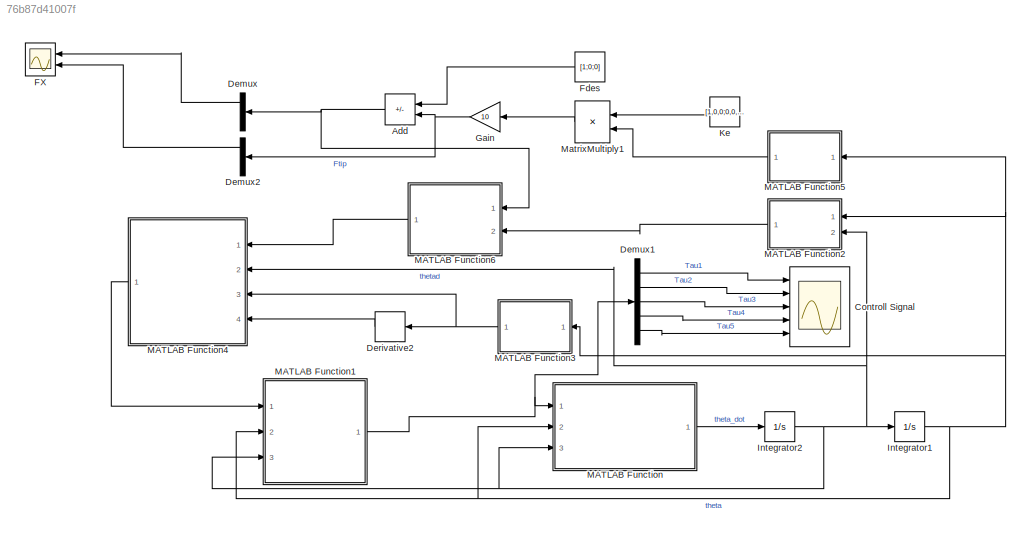
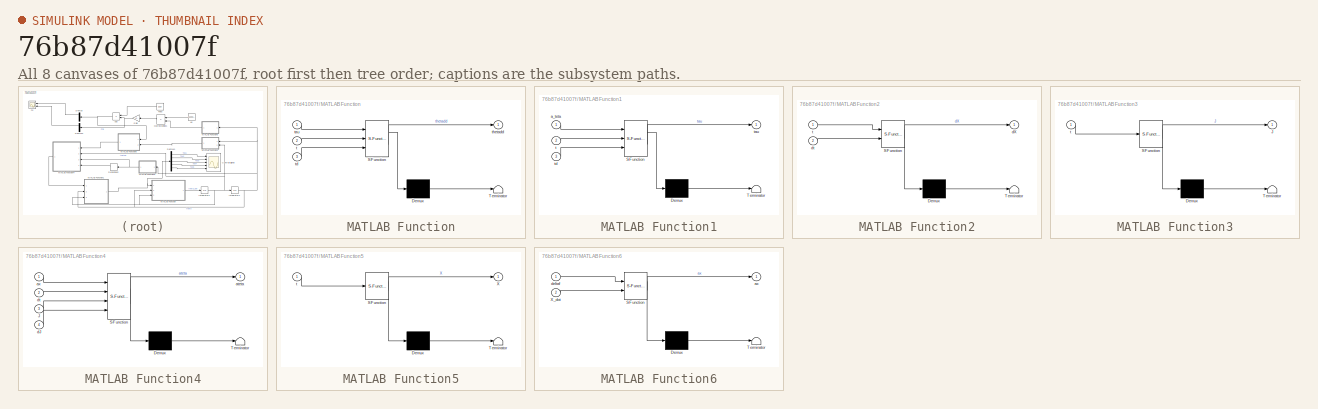
[diagram: thumbnail index - all 8 canvases of the model, root first then tree order]
MODEL slx_76b87d41007f
KIND model
CONFIG AbsTol = auto
CONFIG EnableMultiTasking = off
CONFIG FixedStep = 0.048
CONFIG MaxStep = 0.048
CONFIG MinStep = auto
CONFIG RelTol = 1e-5
CONFIG SampleTimeConstraint = Unconstrained
CONFIG SolverName = VariableStepAuto
CONFIG StartTime = 0.0
CONFIG StopTime = 5
BLOCK [Scope]  FX
  Floating = off
  NameLocation = top
  NumInputPorts = 2
  Ports = [2]
  ScopeSpecificationString = Simulink.scopes.TimeScopeBlockCfg('CurrentConfiguration', extmgr.ConfigurationSet(extmgr.Configuration('Core','General UI',true,'FigureColor',[0.501960784313725 0.501960784313725 0.501960784313725]),extmgr.Configuration('Core','Source UI',true),extmgr.Configuration('Sources','WiredSimulink',true,'DataLoggingVariableName','ScopeData1'),extmgr.Configuration('Visuals','Time Domain',true,'SerializedDi...<+2315ch>
BLOCK [Sum] Add
  IconShape = rectangular
  Inputs = +-
  NameLocation = top
  Ports = [2, 1]
BLOCK [Scope] Controll Signal
  Floating = off
  NumInputPorts = 5
  Ports = [5]
  ScopeSpecificationString = Simulink.scopes.TimeScopeBlockCfg('CurrentConfiguration', extmgr.ConfigurationSet(extmgr.Configuration('Core','General UI',true,'FigureColor',[0.501960784313725 0.501960784313725 0.501960784313725]),extmgr.Configuration('Core','Source UI',true),extmgr.Configuration('Sources','WiredSimulink',true,'DataLoggingVariableName','ScopeData1'),extmgr.Configuration('Visuals','Time Domain',true,'SerializedDi...<+8053ch>
BLOCK [Demux] Demux
  NameLocation = top
  Outputs = 3
  Ports = [1, 3]
BLOCK [Demux] Demux1
  Outputs = 5
  Ports = [1, 5]
BLOCK [Demux] Demux2
  NameLocation = top
  Outputs = 3
  Ports = [1, 3]
BLOCK [Derivative] Derivative2
  NameLocation = top
BLOCK [Constant] Fdes
  NameLocation = top
  Value = [1;0;0]
BLOCK [Gain] Gain
  Gain = 10
  NameLocation = top
BLOCK [Integrator] Integrator1
  InitialCondition = [0;0;0;0;0]
  Ports = [1, 1]
BLOCK [Integrator] Integrator2
  InitialCondition = [0;0;0;0;0]
  Ports = [1, 1]
BLOCK [Constant] Ke
  NameLocation = top
  Value = [1,0,0;0,0,0;0,0,0]
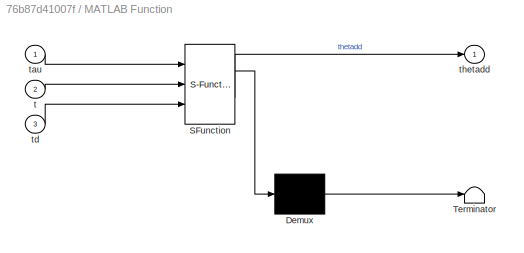
BLOCK [SubSystem] MATLAB Function
  ErrorFcn = Stateflow.Translate.translate
  PermitHierarchicalResolution = ExplicitOnly
  Ports = [3, 1]
  SFBlockType = MATLAB Function
  TreatAsAtomicUnit = on
BLOCK [Demux] MATLAB Function/ Demux 
  Outputs = 1
  Ports = [1, 1]
BLOCK [S-Function] MATLAB Function/ SFunction 
  EnableBusSupport = off
  FunctionName = sf_sfun
  PortCounts = [3 2]
  Ports = [3, 2]
  SFcnIsStateOwnerBlock = off
  SFunctionDeploymentMode = off
  Tag = Stateflow S-Function 3
BLOCK [Terminator] MATLAB Function/ Terminator 
BLOCK [Inport] MATLAB Function/t
  Port = 2
BLOCK [Inport] MATLAB Function/tau
BLOCK [Inport] MATLAB Function/td
  Port = 3
BLOCK [Outport] MATLAB Function/thetadd
BLOCK [SubSystem] MATLAB Function1
  ErrorFcn = Stateflow.Translate.translate
  PermitHierarchicalResolution = ExplicitOnly
  Ports = [3, 1]
  SFBlockType = MATLAB Function
  TreatAsAtomicUnit = on
BLOCK [Demux] MATLAB Function1/ Demux 
  Outputs = 1
  Ports = [1, 1]
BLOCK [S-Function] MATLAB Function1/ SFunction 
  EnableBusSupport = off
  FunctionName = sf_sfun
  PortCounts = [3 2]
  Ports = [3, 2]
  SFcnIsStateOwnerBlock = off
  SFunctionDeploymentMode = off
  Tag = Stateflow S-Function 2
BLOCK [Terminator] MATLAB Function1/ Terminator 
BLOCK [Inport] MATLAB Function1/a_teta
BLOCK [Inport] MATLAB Function1/t
  Port = 2
BLOCK [Outport] MATLAB Function1/tau
BLOCK [Inport] MATLAB Function1/td
  Port = 3
BLOCK [SubSystem] MATLAB Function2
  ErrorFcn = Stateflow.Translate.translate
  NameLocation = top
  PermitHierarchicalResolution = ExplicitOnly
  Ports = [2, 1]
  SFBlockType = MATLAB Function
  TreatAsAtomicUnit = on
BLOCK [Demux] MATLAB Function2/ Demux 
  Outputs = 1
  Ports = [1, 1]
BLOCK [S-Function] MATLAB Function2/ SFunction 
  EnableBusSupport = off
  FunctionName = sf_sfun
  PortCounts = [2 2]
  Ports = [2, 2]
  SFcnIsStateOwnerBlock = off
  SFunctionDeploymentMode = off
  Tag = Stateflow S-Function 1
BLOCK [Terminator] MATLAB Function2/ Terminator 
BLOCK [Outport] MATLAB Function2/dX
BLOCK [Inport] MATLAB Function2/dt
  Port = 2
BLOCK [Inport] MATLAB Function2/t
BLOCK [SubSystem] MATLAB Function3
  ErrorFcn = Stateflow.Translate.translate
  NameLocation = top
  PermitHierarchicalResolution = ExplicitOnly
  Ports = [1, 1]
  SFBlockType = MATLAB Function
  TreatAsAtomicUnit = on
BLOCK [Demux] MATLAB Function3/ Demux 
  Outputs = 1
  Ports = [1, 1]
BLOCK [S-Function] MATLAB Function3/ SFunction 
  EnableBusSupport = off
  FunctionName = sf_sfun
  PortCounts = [1 2]
  Ports = [1, 2]
  SFcnIsStateOwnerBlock = off
  SFunctionDeploymentMode = off
  Tag = Stateflow S-Function 4
BLOCK [Terminator] MATLAB Function3/ Terminator 
BLOCK [Outport] MATLAB Function3/J
BLOCK [Inport] MATLAB Function3/t
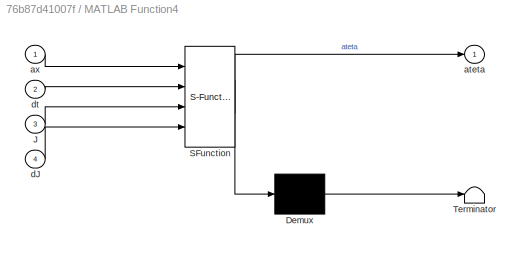
BLOCK [SubSystem] MATLAB Function4
  ErrorFcn = Stateflow.Translate.translate
  NameLocation = top
  PermitHierarchicalResolution = ExplicitOnly
  Ports = [4, 1]
  SFBlockType = MATLAB Function
  TreatAsAtomicUnit = on
BLOCK [Demux] MATLAB Function4/ Demux 
  Outputs = 1
  Ports = [1, 1]
BLOCK [S-Function] MATLAB Function4/ SFunction 
  EnableBusSupport = off
  FunctionName = sf_sfun
  PortCounts = [4 2]
  Ports = [4, 2]
  SFcnIsStateOwnerBlock = off
  SFunctionDeploymentMode = off
  Tag = Stateflow S-Function 5
BLOCK [Terminator] MATLAB Function4/ Terminator 
BLOCK [Inport] MATLAB Function4/J
  Port = 3
BLOCK [Outport] MATLAB Function4/ateta
BLOCK [Inport] MATLAB Function4/ax
BLOCK [Inport] MATLAB Function4/dJ
  Port = 4
BLOCK [Inport] MATLAB Function4/dt
  Port = 2
BLOCK [SubSystem] MATLAB Function5
  ErrorFcn = Stateflow.Translate.translate
  NameLocation = top
  PermitHierarchicalResolution = ExplicitOnly
  Ports = [1, 1]
  SFBlockType = MATLAB Function
  TreatAsAtomicUnit = on
BLOCK [Demux] MATLAB Function5/ Demux 
  Outputs = 1
  Ports = [1, 1]
BLOCK [S-Function] MATLAB Function5/ SFunction 
  EnableBusSupport = off
  FunctionName = sf_sfun
  PortCounts = [1 2]
  Ports = [1, 2]
  SFcnIsStateOwnerBlock = off
  SFunctionDeploymentMode = off
  Tag = Stateflow S-Function 6
BLOCK [Terminator] MATLAB Function5/ Terminator 
BLOCK [Outport] MATLAB Function5/X
BLOCK [Inport] MATLAB Function5/t
BLOCK [SubSystem] MATLAB Function6
  ErrorFcn = Stateflow.Translate.translate
  NameLocation = top
  PermitHierarchicalResolution = ExplicitOnly
  Ports = [2, 1]
  SFBlockType = MATLAB Function
  TreatAsAtomicUnit = on
BLOCK [Demux] MATLAB Function6/ Demux 
  Outputs = 1
  Ports = [1, 1]
BLOCK [S-Function] MATLAB Function6/ SFunction 
  EnableBusSupport = off
  FunctionName = sf_sfun
  PortCounts = [2 2]
  Ports = [2, 2]
  SFcnIsStateOwnerBlock = off
  SFunctionDeploymentMode = off
  Tag = Stateflow S-Function 7
BLOCK [Terminator] MATLAB Function6/ Terminator 
BLOCK [Inport] MATLAB Function6/X_dot
  Port = 2
BLOCK [Outport] MATLAB Function6/ax
BLOCK [Inport] MATLAB Function6/deltaf
BLOCK [Product] MatrixMultiply1
  Multiplication = Matrix(*)
  NameLocation = top
  Ports = [2, 1]
NET Add:1 -> Demux:1, MATLAB Function6:1
LINE Demux1:1 -> Controll Signal:1
LINE Demux1:2 -> Controll Signal:2
LINE Demux1:3 -> Controll Signal:3
LINE Demux1:4 -> Controll Signal:4
LINE Demux1:5 -> Controll Signal:5
LINE Demux2:1 ->  FX:2
LINE Demux:1 ->  FX:1
LINE Derivative2:1 -> MATLAB Function4:4
LINE Fdes:1 -> Add:1
NET Gain:1 -> Add:2, Demux2:1
NET Integrator1:1 -> MATLAB Function1:2, MATLAB Function2:1, MATLAB Function3:1, MATLAB Function5:1, MATLAB Function:2
NET Integrator2:1 -> Integrator1:1, MATLAB Function1:3, MATLAB Function2:2, MATLAB Function4:2, MATLAB Function:3
LINE Ke:1 -> MatrixMultiply1:1
NET MATLAB Function1:1 -> Demux1:1, MATLAB Function:1
LINE MATLAB Function2:1 -> MATLAB Function6:2
NET MATLAB Function3:1 -> Derivative2:1, MATLAB Function4:3
LINE MATLAB Function4:1 -> MATLAB Function1:1
LINE MATLAB Function5:1 -> MatrixMultiply1:2
LINE MATLAB Function6:1 -> MATLAB Function4:1
LINE MATLAB Function:1 -> Integrator2:1
LINE MatrixMultiply1:1 -> Gain:1
note: NET lines group one-source signal fan-out (src -> all destinations, sorted); 1:1 wires keep LINE
CHART MATLAB Function2 states=1 transitions=1
  STATE_LABEL 'eML_blk_kernel()'
  STATE_LABEL 'SCRIPT:\nfunction dX  = fcn(t,dt)\ntheta1 = t(1); theta2 = t(2); theta3 = t(3); \ntheta4 = t(4); theta5 = t(5); \n\n\nT01 = [cos(theta1),0,sin(theta1),0;sin(theta1),0,-cos(theta1),0;0,1,0,0;0,0,0,1];\nT12 = [cos(theta2),-sin(theta2),0,0.50*cos(theta2);sin(theta2),cos(theta2),0,0.50*sin(theta2);0,0,1,0;0,0,0,1];\nT23 = [cos(theta3),-sin(theta3),0,0.50*cos(theta3);sin(theta3),cos(theta3),0,0.50*sin(theta3);...<+697ch>'
CHART MATLAB Function1 states=1 transitions=1
  STATE_LABEL 'eML_blk_kernel()'
  STATE_LABEL 'SCRIPT:\nfunction tau  = fcn(a_teta, t, td)\n\ntheta1 = t(1); theta2 = t(2); theta3 = t(3); \ntheta4 = t(4); theta5 = t(5);  \n\nthetad1 = td(1); thetad2 = td(2); thetad3 = td(3);\nthetad4 = td(4); thetad5 = td(5); \n\nM=zeros(5);\nM(1,1) = 1.1807*cos(theta3) - 0.9672*cos(theta4) - 0.7031*sin(theta3) - 1.7889*sin(theta4) - 0.9672*cos(theta3)*cos(theta4) - 1.7889*cos(theta3)*sin(theta4) - 1.7889*cos(theta4)*...<+3608ch>'
CHART MATLAB Function states=1 transitions=1
  STATE_LABEL 'eML_blk_kernel()'
  STATE_LABEL 'SCRIPT:\nfunction thetadd  = fcn(tau, t, td)\ntheta1 = t(1); theta2 = t(2); theta3 = t(3); \ntheta4 = t(4); theta5 = t(5);  \n\nthetad1 = td(1); thetad2 = td(2); thetad3 = td(3);\nthetad4 = td(4); thetad5 = td(5); \n\nM=zeros(5);\nM(1,1) = 1.1807*cos(theta3) - 0.9672*cos(theta4) - 0.7031*sin(theta3) - 1.7889*sin(theta4) - 0.9672*cos(theta3)*cos(theta4) - 1.7889*cos(theta3)*sin(theta4) - 1.7889*cos(theta4)*...<+3608ch>'
CHART MATLAB Function3 states=1 transitions=1
  STATE_LABEL 'eML_blk_kernel()'
  STATE_LABEL 'SCRIPT:\nfunction J  = fcn(t)\ntheta1 = t(1); theta2 = t(2); theta3 = t(3); \ntheta4 = t(4); theta5 = t(5); \n\n\nT01 = [cos(theta1),0,sin(theta1),0;sin(theta1),0,-cos(theta1),0;0,1,0,0;0,0,0,1];\nT12 = [cos(theta2),-sin(theta2),0,0.50*cos(theta2);sin(theta2),cos(theta2),0,0.50*sin(theta2);0,0,1,0;0,0,0,1];\nT23 = [cos(theta3),-sin(theta3),0,0.50*cos(theta3);sin(theta3),cos(theta3),0,0.50*sin(theta3);0,0,...<+684ch>'
CHART MATLAB Function4 states=1 transitions=1
  STATE_LABEL 'eML_blk_kernel()'
  STATE_LABEL 'SCRIPT:\nfunction ateta= fcn(ax,dt,J,dJ)\n Jt=pinv(J);\n \n ateta=Jt*(ax-dJ*dt);\n\nreturn;\n'
CHART MATLAB Function5 states=1 transitions=1
  STATE_LABEL 'eML_blk_kernel()'
  STATE_LABEL 'SCRIPT:\nfunction X = fcn(t)\ntheta1 = t(1); theta2 = t(2); theta3 = t(3); \ntheta4 = t(4); theta5 = t(5); \n\n\nT01 = [cos(theta1),0,sin(theta1),0;sin(theta1),0,-cos(theta1),0;0,1,0,0;0,0,0,1];\nT12 = [cos(theta2),-sin(theta2),0,0.50*cos(theta2);sin(theta2),cos(theta2),0,0.50*sin(theta2);0,0,1,0;0,0,0,1];\nT23 = [cos(theta3),-sin(theta3),0,0.50*cos(theta3);sin(theta3),cos(theta3),0,0.50*sin(theta3);0,0,1...<+316ch>'
CHART MATLAB Function6 states=1 transitions=1
  STATE_LABEL 'eML_blk_kernel()'
  STATE_LABEL 'SCRIPT:\nfunction ax = fcn(deltaf,X_dot)\nBc = 20 ; Mc = 15 ;\nax = -Bc/Mc * X_dot + 1/Mc * deltaf ; \n\n\nreturn;\n'
CHART  states=0 transitions=0
CHART  states=0 transitions=0
CHART  states=0 transitions=0
CHART  states=0 transitions=0
CHART  states=0 transitions=0
CHART  states=0 transitions=0
CHART  states=0 transitions=0
